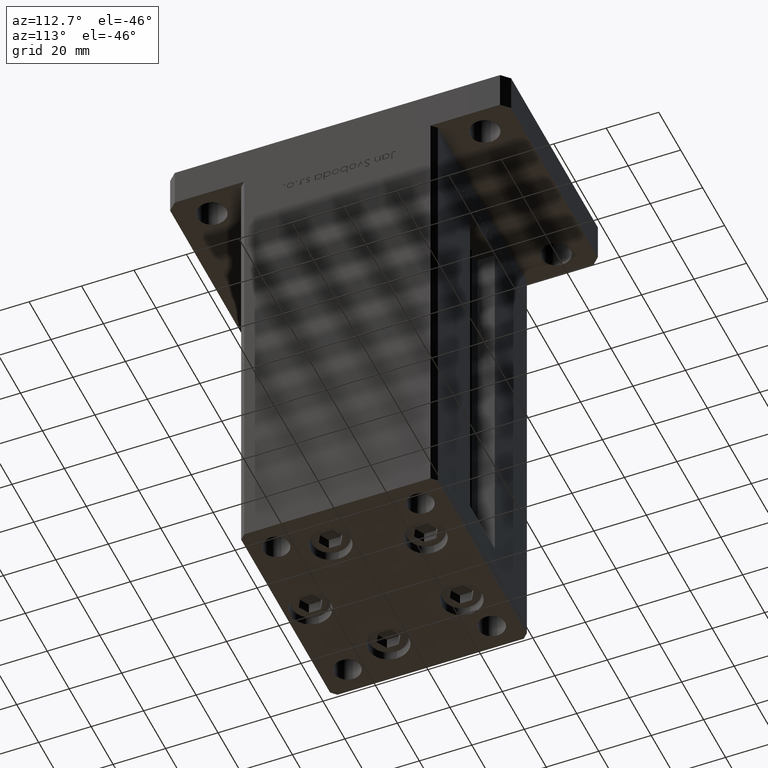
[diagram: clean part render]
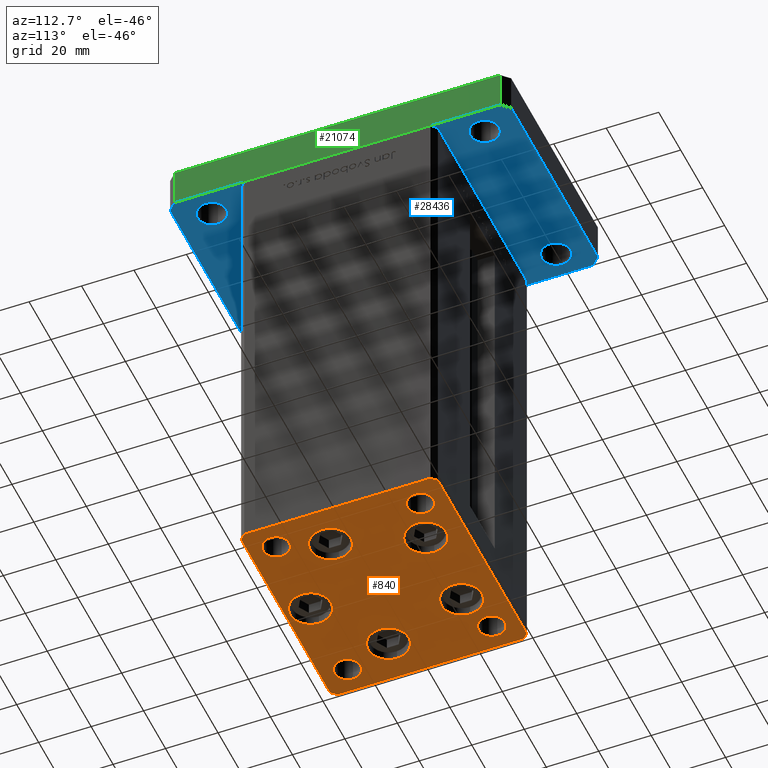
[diagram: same view with three faces highlighted in distinct colors, each labeled with its STEP entity id]
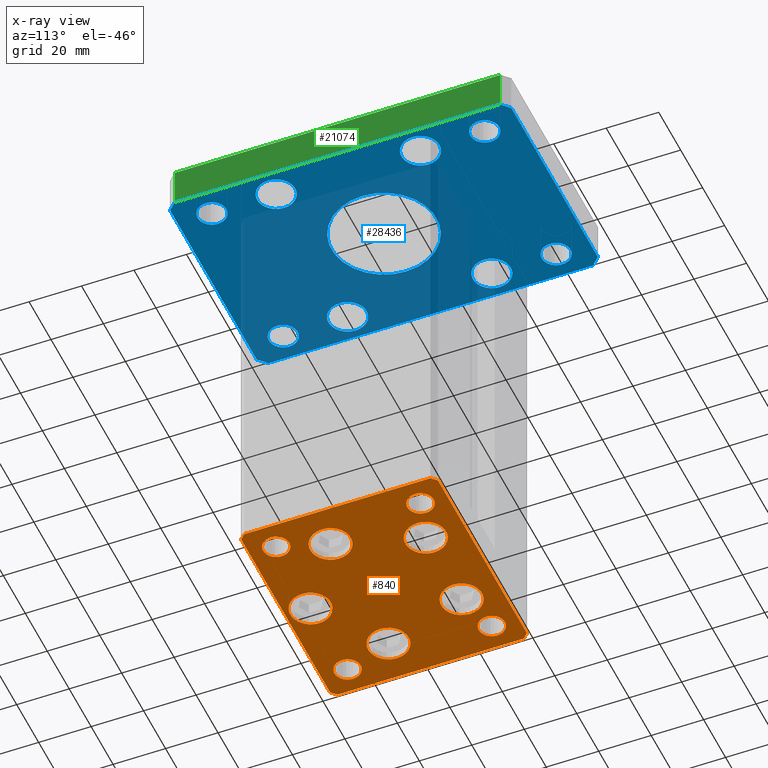
[diagram: x-ray of the same camera — body ghosted, the three highlighted faces saturated]
A machine part, auxiliary view with three faces highlighted in distinct colors.
The next image is the same camera in x-ray (body ghosted, the three faces saturated) — at least one of them is partly hidden behind the body in this view.
Their STEP definitions:

[orange] entity #840 — the highlighted planar face has unit normal (0, 0, -1).
#47 = EDGE_CURVE ( 'NONE', #5309, #43931, #10502, .T. ) ;
#50 = DIRECTION ( 'NONE',  ( 0.000000000000000000, -0.000000000000000000, -1.000000000000000000 ) ) ;
#138 = ORIENTED_EDGE ( 'NONE', *, *, #41197, .T. ) ;
#218 = EDGE_CURVE ( 'NONE', #30750, #37658, #41657, .T. ) ;
#732 = ORIENTED_EDGE ( 'NONE', *, *, #39212, .T. ) ;
#840 = ADVANCED_FACE ( 'NONE', ( #23060, #35537, #50135, #49337, #45540, #28991, #41745, #24394, #3538, #4334 ), #8409, .T. ) ;
#1034 = LINE ( 'NONE', #4027, #26340 ) ;
#1623 = DIRECTION ( 'NONE',  ( 0.000000000000000000, -0.000000000000000000, -1.000000000000000000 ) ) ;
#2177 = CARTESIAN_POINT ( 'NONE',  ( -34.14865316429776954, -9.333333333333337478, 0.000000000000000000 ) ) ;
#2233 = DIRECTION ( 'NONE',  ( -0.7071067811865463515, -0.7071067811865487940, 0.000000000000000000 ) ) ;
#2265 = ORIENTED_EDGE ( 'NONE', *, *, #39911, .T. ) ;
#2765 = VECTOR ( 'NONE', #36749, 1000.000000000000000 ) ;
#2802 = ORIENTED_EDGE ( 'NONE', *, *, #2935, .T. ) ;
#2814 = ORIENTED_EDGE ( 'NONE', *, *, #6255, .T. ) ;
#2935 = EDGE_CURVE ( 'NONE', #43137, #47054, #35698, .T. ) ;
#3074 = EDGE_CURVE ( 'NONE', #26140, #9778, #19243, .T. ) ;
#3148 = DIRECTION ( 'NONE',  ( -0.000000000000000000, 0.000000000000000000, 1.000000000000000000 ) ) ;
#3444 = EDGE_CURVE ( 'NONE', #14426, #27191, #6249, .T. ) ;
#3485 = EDGE_CURVE ( 'NONE', #21189, #26072, #13161, .T. ) ;
#3538 = FACE_OUTER_BOUND ( 'NONE', #14034, .T. ) ;
#3656 = AXIS2_PLACEMENT_3D ( 'NONE', #21634, #46039, #38169 ) ;
#3878 = DIRECTION ( 'NONE',  ( 0.000000000000000000, -0.000000000000000000, -1.000000000000000000 ) ) ;
#4023 = AXIS2_PLACEMENT_3D ( 'NONE', #20931, #3878, #8483 ) ;
#4027 = CARTESIAN_POINT ( 'NONE',  ( -40.49999999999999289, -37.50000000000002132, 0.000000000000000000 ) ) ;
#4334 = FACE_BOUND ( 'NONE', #7722, .T. ) ;
#4537 = DIRECTION ( 'NONE',  ( 1.000000000000000000, 0.000000000000000000, 0.000000000000000000 ) ) ;
#4918 = CARTESIAN_POINT ( 'NONE',  ( -37.50000000000000711, -27.49999999999999645, 0.000000000000000000 ) ) ;
#5309 = VERTEX_POINT ( 'NONE', #50039 ) ;
#5395 = EDGE_CURVE ( 'NONE', #13541, #24502, #13974, .T. ) ;
#5530 = EDGE_LOOP ( 'NONE', ( #2802, #9912 ) ) ;
#6033 = CARTESIAN_POINT ( 'NONE',  ( -42.50000000000000711, 35.49999999999997158, 0.000000000000000000 ) ) ;
#6249 = CIRCLE ( 'NONE', #3656, 5.000000000000000888 ) ;
#6255 = EDGE_CURVE ( 'NONE', #43931, #5309, #46015, .T. ) ;
#6308 = DIRECTION ( 'NONE',  ( 1.000000000000000000, 0.000000000000000000, 0.000000000000000000 ) ) ;
#6506 = LINE ( 'NONE', #15701, #11079 ) ;
#6619 = EDGE_CURVE ( 'NONE', #27191, #14426, #26120, .T. ) ;
#6905 = DIRECTION ( 'NONE',  ( -1.000000000000000000, -3.426614273534436165E-16, 0.000000000000000000 ) ) ;
#7217 = AXIS2_PLACEMENT_3D ( 'NONE', #35352, #48082, #26402 ) ;
#7321 = DIRECTION ( 'NONE',  ( -1.172770800660376741E-15, 1.000000000000000000, 0.000000000000000000 ) ) ;
#7591 = EDGE_CURVE ( 'NONE', #20173, #41198, #49473, .T. ) ;
#7722 = EDGE_LOOP ( 'NONE', ( #30973, #23786 ) ) ;
#7795 = DIRECTION ( 'NONE',  ( 1.000000000000000000, 0.000000000000000000, 0.000000000000000000 ) ) ;
#7968 = DIRECTION ( 'NONE',  ( 0.000000000000000000, -0.000000000000000000, -1.000000000000000000 ) ) ;
#7994 = CARTESIAN_POINT ( 'NONE',  ( 8.572913342905422951, 22.75000000000000000, 0.000000000000000000 ) ) ;
#8019 = EDGE_CURVE ( 'NONE', #42015, #36203, #38322, .T. ) ;
#8336 = CARTESIAN_POINT ( 'NONE',  ( -18.64865316429776954, -9.333333333333335702, 0.000000000000000000 ) ) ;
#8409 = PLANE ( 'NONE',  #26083 ) ;
#8483 = DIRECTION ( 'NONE',  ( 1.000000000000000000, 0.000000000000000000, 0.000000000000000000 ) ) ;
#9227 = DIRECTION ( 'NONE',  ( 1.000000000000000000, 0.000000000000000000, 0.000000000000000000 ) ) ;
#9694 = CARTESIAN_POINT ( 'NONE',  ( 27.50000000000000355, -27.49999999999999645, 0.000000000000000000 ) ) ;
#9778 = VERTEX_POINT ( 'NONE', #8336 ) ;
#9897 = CARTESIAN_POINT ( 'NONE',  ( 42.49999999999992895, 35.50000000000000000, 0.000000000000000000 ) ) ;
#9912 = ORIENTED_EDGE ( 'NONE', *, *, #30635, .T. ) ;
#9947 = DIRECTION ( 'NONE',  ( 0.000000000000000000, -0.000000000000000000, -1.000000000000000000 ) ) ;
#10188 = ORIENTED_EDGE ( 'NONE', *, *, #52794, .T. ) ;
#10290 = CARTESIAN_POINT ( 'NONE',  ( 32.50000000000000000, 27.49999999999999645, 0.000000000000000000 ) ) ;
#10502 = CIRCLE ( 'NONE', #39065, 7.750000000000000000 ) ;
#10798 = VERTEX_POINT ( 'NONE', #12138 ) ;
#10851 = ORIENTED_EDGE ( 'NONE', *, *, #6619, .F. ) ;
#10870 = CARTESIAN_POINT ( 'NONE',  ( -27.50000000000000000, -27.49999999999999645, 0.000000000000000000 ) ) ;
#11079 = VECTOR ( 'NONE', #7321, 1000.000000000000000 ) ;
#12138 = CARTESIAN_POINT ( 'NONE',  ( -40.50000000000000711, 37.49999999999997868, 0.000000000000000000 ) ) ;
#12197 = CARTESIAN_POINT ( 'NONE',  ( 0.000000000000000000, 0.000000000000000000, 0.000000000000000000 ) ) ;
#12249 = DIRECTION ( 'NONE',  ( 1.000000000000000000, 0.000000000000000000, 0.000000000000000000 ) ) ;
#12503 = CARTESIAN_POINT ( 'NONE',  ( 32.50000000000000000, -27.49999999999999645, 0.000000000000000000 ) ) ;
#13093 = CARTESIAN_POINT ( 'NONE',  ( 32.50000000000000000, -27.49999999999999645, 0.000000000000000000 ) ) ;
#13161 = CIRCLE ( 'NONE', #43472, 5.000000000000000888 ) ;
#13192 = AXIS2_PLACEMENT_3D ( 'NONE', #21876, #9947, #18598 ) ;
#13541 = VERTEX_POINT ( 'NONE', #24098 ) ;
#13553 = CARTESIAN_POINT ( 'NONE',  ( -26.39865316429776954, -9.333333333333337478, 0.000000000000000000 ) ) ;
#13632 = EDGE_CURVE ( 'NONE', #41198, #30080, #1034, .T. ) ;
#13942 = CARTESIAN_POINT ( 'NONE',  ( 18.64865316429776954, -9.333333333333330373, 0.000000000000000000 ) ) ;
#13974 = CIRCLE ( 'NONE', #49458, 4.999999999999997335 ) ;
#14034 = EDGE_LOOP ( 'NONE', ( #29025, #21039, #138, #38753, #24795, #732, #27035, #47514 ) ) ;
#14045 = EDGE_CURVE ( 'NONE', #24502, #13541, #34136, .T. ) ;
#14116 = EDGE_CURVE ( 'NONE', #22898, #20173, #51289, .T. ) ;
#14157 = DIRECTION ( 'NONE',  ( 9.773090005503140331E-17, -1.000000000000000000, 0.000000000000000000 ) ) ;
#14426 = VERTEX_POINT ( 'NONE', #18964 ) ;
#14948 = CARTESIAN_POINT ( 'NONE',  ( -42.50000000000000000, -35.50000000000000711, 0.000000000000000000 ) ) ;
#15280 = CARTESIAN_POINT ( 'NONE',  ( 24.07291334290542650, 22.75000000000000000, 0.000000000000000000 ) ) ;
#15701 = CARTESIAN_POINT ( 'NONE',  ( 42.50000000000000711, -35.50000000000000000, 0.000000000000000000 ) ) ;
#16723 = DIRECTION ( 'NONE',  ( 0.000000000000000000, -0.000000000000000000, -1.000000000000000000 ) ) ;
#16982 = DIRECTION ( 'NONE',  ( 1.000000000000000000, 0.000000000000000000, 0.000000000000000000 ) ) ;
#17338 = EDGE_LOOP ( 'NONE', ( #44650, #37374 ) ) ;
#17771 = ORIENTED_EDGE ( 'NONE', *, *, #31943, .T. ) ;
#17949 = DIRECTION ( 'NONE',  ( 0.000000000000000000, -0.000000000000000000, -1.000000000000000000 ) ) ;
#18114 = CIRCLE ( 'NONE', #18977, 7.750000000000000000 ) ;
#18400 = DIRECTION ( 'NONE',  ( 1.000000000000000000, 0.000000000000000000, 0.000000000000000000 ) ) ;
#18598 = DIRECTION ( 'NONE',  ( 1.000000000000000000, 0.000000000000000000, 0.000000000000000000 ) ) ;
#18964 = CARTESIAN_POINT ( 'NONE',  ( -27.50000000000000000, 27.50000000000000355, 0.000000000000000000 ) ) ;
#18977 = AXIS2_PLACEMENT_3D ( 'NONE', #33259, #29188, #16982 ) ;
#19243 = CIRCLE ( 'NONE', #46936, 7.750000000000000000 ) ;
#19441 = AXIS2_PLACEMENT_3D ( 'NONE', #13093, #49968, #41839 ) ;
#19572 = VERTEX_POINT ( 'NONE', #30318 ) ;
#19909 = EDGE_CURVE ( 'NONE', #26072, #21189, #22202, .T. ) ;
#19944 = EDGE_CURVE ( 'NONE', #45033, #19572, #28801, .T. ) ;
#20173 = VERTEX_POINT ( 'NONE', #14948 ) ;
#20333 = CARTESIAN_POINT ( 'NONE',  ( 40.50000000000000000, -37.50000000000000711, 0.000000000000000000 ) ) ;
#20512 = EDGE_CURVE ( 'NONE', #37658, #30750, #45511, .T. ) ;
#20516 = CARTESIAN_POINT ( 'NONE',  ( -32.50000000000000000, 27.50000000000000355, 0.000000000000000000 ) ) ;
#20931 = CARTESIAN_POINT ( 'NONE',  ( -32.50000000000000000, -27.49999999999999645, 0.000000000000000000 ) ) ;
#21039 = ORIENTED_EDGE ( 'NONE', *, *, #13632, .T. ) ;
#21189 = VERTEX_POINT ( 'NONE', #10870 ) ;
#21346 = CARTESIAN_POINT ( 'NONE',  ( 7.750000000000003553, -28.00000000000000000, 0.000000000000000000 ) ) ;
#21376 = CARTESIAN_POINT ( 'NONE',  ( 42.50000000000000711, -35.50000000000000000, 0.000000000000000000 ) ) ;
#21403 = ORIENTED_EDGE ( 'NONE', *, *, #3444, .F. ) ;
#21634 = CARTESIAN_POINT ( 'NONE',  ( -32.50000000000000000, 27.50000000000000355, 0.000000000000000000 ) ) ;
#21672 = ORIENTED_EDGE ( 'NONE', *, *, #5395, .T. ) ;
#21876 = CARTESIAN_POINT ( 'NONE',  ( 16.32291334290542295, 22.75000000000000000, 0.000000000000000000 ) ) ;
#22202 = CIRCLE ( 'NONE', #4023, 5.000000000000000888 ) ;
#22325 = DIRECTION ( 'NONE',  ( 0.7071067811865474617, 0.7071067811865474617, 0.000000000000000000 ) ) ;
#22556 = EDGE_LOOP ( 'NONE', ( #17771, #38664 ) ) ;
#22818 = LINE ( 'NONE', #39386, #34084 ) ;
#22851 = CARTESIAN_POINT ( 'NONE',  ( 40.50000000000000000, -37.50000000000000711, 0.000000000000000000 ) ) ;
#22898 = VERTEX_POINT ( 'NONE', #34244 ) ;
#23060 = FACE_BOUND ( 'NONE', #30880, .T. ) ;
#23223 = CARTESIAN_POINT ( 'NONE',  ( -37.50000000000000711, 27.50000000000000355, 0.000000000000000000 ) ) ;
#23482 = VERTEX_POINT ( 'NONE', #21376 ) ;
#23786 = ORIENTED_EDGE ( 'NONE', *, *, #19909, .T. ) ;
#23945 = CIRCLE ( 'NONE', #29963, 7.750000000000000000 ) ;
#24098 = CARTESIAN_POINT ( 'NONE',  ( 37.50000000000000000, -27.49999999999999645, 0.000000000000000000 ) ) ;
#24394 = FACE_BOUND ( 'NONE', #38972, .T. ) ;
#24502 = VERTEX_POINT ( 'NONE', #9694 ) ;
#24795 = ORIENTED_EDGE ( 'NONE', *, *, #19944, .T. ) ;
#24798 = VECTOR ( 'NONE', #45092, 1000.000000000000114 ) ;
#24829 = VECTOR ( 'NONE', #22325, 1000.000000000000114 ) ;
#26072 = VERTEX_POINT ( 'NONE', #4918 ) ;
#26083 = AXIS2_PLACEMENT_3D ( 'NONE', #12197, #45015, #45808 ) ;
#26120 = CIRCLE ( 'NONE', #47793, 5.000000000000000888 ) ;
#26140 = VERTEX_POINT ( 'NONE', #2177 ) ;
#26340 = VECTOR ( 'NONE', #46300, 1000.000000000000000 ) ;
#26402 = DIRECTION ( 'NONE',  ( 1.000000000000000000, 0.000000000000000000, 0.000000000000000000 ) ) ;
#26717 = CARTESIAN_POINT ( 'NONE',  ( 3.429011037612589276E-15, -28.00000000000000000, 0.000000000000000000 ) ) ;
#26791 = CARTESIAN_POINT ( 'NONE',  ( 37.50000000000000000, 27.49999999999999645, 0.000000000000000000 ) ) ;
#26984 = ORIENTED_EDGE ( 'NONE', *, *, #30274, .T. ) ;
#27035 = ORIENTED_EDGE ( 'NONE', *, *, #31994, .T. ) ;
#27191 = VERTEX_POINT ( 'NONE', #23223 ) ;
#27431 = DIRECTION ( 'NONE',  ( 1.000000000000000000, 0.000000000000000000, 0.000000000000000000 ) ) ;
#27983 = CARTESIAN_POINT ( 'NONE',  ( 3.429011037612589276E-15, -28.00000000000000000, 0.000000000000000000 ) ) ;
#28062 = CARTESIAN_POINT ( 'NONE',  ( 32.50000000000000000, 27.49999999999999645, 0.000000000000000000 ) ) ;
#28801 = LINE ( 'NONE', #45618, #24798 ) ;
#28991 = FACE_BOUND ( 'NONE', #17338, .T. ) ;
#29025 = ORIENTED_EDGE ( 'NONE', *, *, #7591, .T. ) ;
#29188 = DIRECTION ( 'NONE',  ( 0.000000000000000000, -0.000000000000000000, -1.000000000000000000 ) ) ;
#29350 = CARTESIAN_POINT ( 'NONE',  ( -26.39865316429776954, -9.333333333333337478, 0.000000000000000000 ) ) ;
#29441 = DIRECTION ( 'NONE',  ( -0.000000000000000000, 0.000000000000000000, 1.000000000000000000 ) ) ;
#29487 = DIRECTION ( 'NONE',  ( 0.000000000000000000, -0.000000000000000000, -1.000000000000000000 ) ) ;
#29834 = DIRECTION ( 'NONE',  ( 1.000000000000000000, 0.000000000000000000, 0.000000000000000000 ) ) ;
#29963 = AXIS2_PLACEMENT_3D ( 'NONE', #13553, #1623, #9227 ) ;
#30080 = VERTEX_POINT ( 'NONE', #20333 ) ;
#30274 = EDGE_CURVE ( 'NONE', #41400, #31845, #48758, .T. ) ;
#30318 = CARTESIAN_POINT ( 'NONE',  ( 40.49999999999991473, 37.50000000000000711, 0.000000000000000000 ) ) ;
#30635 = EDGE_CURVE ( 'NONE', #47054, #43137, #33148, .T. ) ;
#30750 = VERTEX_POINT ( 'NONE', #40763 ) ;
#30880 = EDGE_LOOP ( 'NONE', ( #10188, #26984 ) ) ;
#30973 = ORIENTED_EDGE ( 'NONE', *, *, #3485, .T. ) ;
#31845 = VERTEX_POINT ( 'NONE', #37132 ) ;
#31943 = EDGE_CURVE ( 'NONE', #36203, #42015, #44480, .T. ) ;
#31994 = EDGE_CURVE ( 'NONE', #10798, #22898, #22818, .T. ) ;
#33109 = EDGE_LOOP ( 'NONE', ( #35329, #2265 ) ) ;
#33134 = CARTESIAN_POINT ( 'NONE',  ( 34.14865316429776954, -9.333333333333328596, 0.000000000000000000 ) ) ;
#33148 = CIRCLE ( 'NONE', #7217, 7.750000000000000000 ) ;
#33202 = CARTESIAN_POINT ( 'NONE',  ( -42.50000000000000000, -35.50000000000000711, 0.000000000000000000 ) ) ;
#33259 = CARTESIAN_POINT ( 'NONE',  ( -16.32291334290543006, 22.74999999999999645, 0.000000000000000000 ) ) ;
#33479 = ORIENTED_EDGE ( 'NONE', *, *, #47, .T. ) ;
#34084 = VECTOR ( 'NONE', #2233, 1000.000000000000000 ) ;
#34106 = CARTESIAN_POINT ( 'NONE',  ( -32.50000000000000000, -27.49999999999999645, 0.000000000000000000 ) ) ;
#34136 = CIRCLE ( 'NONE', #19441, 4.999999999999997335 ) ;
#34244 = CARTESIAN_POINT ( 'NONE',  ( -42.50000000000000711, 35.49999999999997158, 0.000000000000000000 ) ) ;
#34786 = EDGE_LOOP ( 'NONE', ( #21672, #48109 ) ) ;
#35329 = ORIENTED_EDGE ( 'NONE', *, *, #3074, .T. ) ;
#35352 = CARTESIAN_POINT ( 'NONE',  ( 26.39865316429776954, -9.333333333333330373, 0.000000000000000000 ) ) ;
#35359 = LINE ( 'NONE', #51881, #41249 ) ;
#35537 = FACE_BOUND ( 'NONE', #22556, .T. ) ;
#35698 = CIRCLE ( 'NONE', #52133, 7.750000000000000000 ) ;
#36203 = VERTEX_POINT ( 'NONE', #7994 ) ;
#36749 = DIRECTION ( 'NONE',  ( 0.7071067811865463515, -0.7071067811865487940, 0.000000000000000000 ) ) ;
#36843 = DIRECTION ( 'NONE',  ( 0.000000000000000000, -0.000000000000000000, -1.000000000000000000 ) ) ;
#37132 = CARTESIAN_POINT ( 'NONE',  ( -24.07291334290543006, 22.74999999999999645, 0.000000000000000000 ) ) ;
#37374 = ORIENTED_EDGE ( 'NONE', *, *, #218, .F. ) ;
#37658 = VERTEX_POINT ( 'NONE', #26791 ) ;
#38169 = DIRECTION ( 'NONE',  ( 1.000000000000000000, 0.000000000000000000, 0.000000000000000000 ) ) ;
#38322 = CIRCLE ( 'NONE', #13192, 7.750000000000003553 ) ;
#38591 = AXIS2_PLACEMENT_3D ( 'NONE', #10290, #39027, #18400 ) ;
#38615 = CARTESIAN_POINT ( 'NONE',  ( -40.49999999999999289, -37.50000000000002132, 0.000000000000000000 ) ) ;
#38664 = ORIENTED_EDGE ( 'NONE', *, *, #8019, .T. ) ;
#38753 = ORIENTED_EDGE ( 'NONE', *, *, #44496, .T. ) ;
#38972 = EDGE_LOOP ( 'NONE', ( #21403, #10851 ) ) ;
#39027 = DIRECTION ( 'NONE',  ( -0.000000000000000000, 0.000000000000000000, 1.000000000000000000 ) ) ;
#39065 = AXIS2_PLACEMENT_3D ( 'NONE', #26717, #42999, #47324 ) ;
#39212 = EDGE_CURVE ( 'NONE', #19572, #10798, #35359, .T. ) ;
#39386 = CARTESIAN_POINT ( 'NONE',  ( -40.50000000000000711, 37.49999999999997868, 0.000000000000000000 ) ) ;
#39911 = EDGE_CURVE ( 'NONE', #9778, #26140, #23945, .T. ) ;
#39936 = AXIS2_PLACEMENT_3D ( 'NONE', #28062, #3148, #52475 ) ;
#40763 = CARTESIAN_POINT ( 'NONE',  ( 27.50000000000000355, 27.49999999999999645, 0.000000000000000000 ) ) ;
#40979 = AXIS2_PLACEMENT_3D ( 'NONE', #53596, #16723, #4537 ) ;
#41197 = EDGE_CURVE ( 'NONE', #30080, #23482, #46995, .T. ) ;
#41198 = VERTEX_POINT ( 'NONE', #38615 ) ;
#41249 = VECTOR ( 'NONE', #6905, 1000.000000000000000 ) ;
#41275 = CARTESIAN_POINT ( 'NONE',  ( -8.572913342905431833, 22.74999999999999645, 0.000000000000000000 ) ) ;
#41400 = VERTEX_POINT ( 'NONE', #41275 ) ;
#41657 = CIRCLE ( 'NONE', #39936, 4.999999999999997335 ) ;
#41745 = FACE_BOUND ( 'NONE', #34786, .T. ) ;
#41839 = DIRECTION ( 'NONE',  ( 1.000000000000000000, 0.000000000000000000, 0.000000000000000000 ) ) ;
#42015 = VERTEX_POINT ( 'NONE', #15280 ) ;
#42999 = DIRECTION ( 'NONE',  ( 0.000000000000000000, -0.000000000000000000, -1.000000000000000000 ) ) ;
#43137 = VERTEX_POINT ( 'NONE', #13942 ) ;
#43472 = AXIS2_PLACEMENT_3D ( 'NONE', #34106, #29487, #46305 ) ;
#43931 = VERTEX_POINT ( 'NONE', #21346 ) ;
#44480 = CIRCLE ( 'NONE', #46200, 7.750000000000003553 ) ;
#44496 = EDGE_CURVE ( 'NONE', #23482, #45033, #6506, .T. ) ;
#44650 = ORIENTED_EDGE ( 'NONE', *, *, #20512, .F. ) ;
#45015 = DIRECTION ( 'NONE',  ( -0.000000000000000000, 0.000000000000000000, 1.000000000000000000 ) ) ;
#45033 = VERTEX_POINT ( 'NONE', #9897 ) ;
#45092 = DIRECTION ( 'NONE',  ( -0.7071067811865474617, 0.7071067811865474617, 0.000000000000000000 ) ) ;
#45511 = CIRCLE ( 'NONE', #38591, 4.999999999999997335 ) ;
#45540 = FACE_BOUND ( 'NONE', #33109, .T. ) ;
#45618 = CARTESIAN_POINT ( 'NONE',  ( 42.49999999999992895, 35.50000000000000000, 0.000000000000000000 ) ) ;
#45632 = CARTESIAN_POINT ( 'NONE',  ( 26.39865316429776954, -9.333333333333330373, 0.000000000000000000 ) ) ;
#45808 = DIRECTION ( 'NONE',  ( 1.000000000000000000, 0.000000000000000000, 0.000000000000000000 ) ) ;
#45854 = DIRECTION ( 'NONE',  ( 0.000000000000000000, -0.000000000000000000, -1.000000000000000000 ) ) ;
#46015 = CIRCLE ( 'NONE', #50340, 7.750000000000000000 ) ;
#46039 = DIRECTION ( 'NONE',  ( -0.000000000000000000, 0.000000000000000000, 1.000000000000000000 ) ) ;
#46200 = AXIS2_PLACEMENT_3D ( 'NONE', #48782, #36843, #6308 ) ;
#46300 = DIRECTION ( 'NONE',  ( 1.000000000000000000, 1.713307136767217096E-16, 0.000000000000000000 ) ) ;
#46305 = DIRECTION ( 'NONE',  ( 1.000000000000000000, 0.000000000000000000, 0.000000000000000000 ) ) ;
#46936 = AXIS2_PLACEMENT_3D ( 'NONE', #29350, #17949, #27431 ) ;
#46993 = EDGE_LOOP ( 'NONE', ( #33479, #2814 ) ) ;
#46995 = LINE ( 'NONE', #22851, #24829 ) ;
#47054 = VERTEX_POINT ( 'NONE', #33134 ) ;
#47087 = VECTOR ( 'NONE', #14157, 1000.000000000000000 ) ;
#47324 = DIRECTION ( 'NONE',  ( 1.000000000000000000, 0.000000000000000000, 0.000000000000000000 ) ) ;
#47514 = ORIENTED_EDGE ( 'NONE', *, *, #14116, .T. ) ;
#47793 = AXIS2_PLACEMENT_3D ( 'NONE', #20516, #29441, #7795 ) ;
#48082 = DIRECTION ( 'NONE',  ( 0.000000000000000000, -0.000000000000000000, -1.000000000000000000 ) ) ;
#48109 = ORIENTED_EDGE ( 'NONE', *, *, #14045, .T. ) ;
#48758 = CIRCLE ( 'NONE', #40979, 7.750000000000000000 ) ;
#48782 = CARTESIAN_POINT ( 'NONE',  ( 16.32291334290542295, 22.75000000000000000, 0.000000000000000000 ) ) ;
#49170 = DIRECTION ( 'NONE',  ( 1.000000000000000000, 0.000000000000000000, 0.000000000000000000 ) ) ;
#49337 = FACE_BOUND ( 'NONE', #46993, .T. ) ;
#49458 = AXIS2_PLACEMENT_3D ( 'NONE', #12503, #45854, #29834 ) ;
#49473 = LINE ( 'NONE', #33202, #2765 ) ;
#49968 = DIRECTION ( 'NONE',  ( 0.000000000000000000, -0.000000000000000000, -1.000000000000000000 ) ) ;
#50039 = CARTESIAN_POINT ( 'NONE',  ( -7.749999999999996447, -28.00000000000000000, 0.000000000000000000 ) ) ;
#50135 = FACE_BOUND ( 'NONE', #5530, .T. ) ;
#50340 = AXIS2_PLACEMENT_3D ( 'NONE', #27983, #50, #12249 ) ;
#51289 = LINE ( 'NONE', #6033, #47087 ) ;
#51881 = CARTESIAN_POINT ( 'NONE',  ( 40.49999999999991473, 37.50000000000000711, 0.000000000000000000 ) ) ;
#52133 = AXIS2_PLACEMENT_3D ( 'NONE', #45632, #7968, #49170 ) ;
#52475 = DIRECTION ( 'NONE',  ( 1.000000000000000000, 0.000000000000000000, 0.000000000000000000 ) ) ;
#52794 = EDGE_CURVE ( 'NONE', #31845, #41400, #18114, .T. ) ;
#53596 = CARTESIAN_POINT ( 'NONE',  ( -16.32291334290543006, 22.74999999999999645, 0.000000000000000000 ) ) ;

[blue] entity #28436 — the highlighted planar face has unit normal (0, 0, 1).
#71 = EDGE_CURVE ( 'NONE', #35813, #35354, #22587, .T. ) ;
#129 = ORIENTED_EDGE ( 'NONE', *, *, #7662, .T. ) ;
#338 = CARTESIAN_POINT ( 'NONE',  ( -42.50000000000002132, 62.00000000000000711, 0.000000000000000000 ) ) ;
#1063 = CIRCLE ( 'NONE', #16639, 5.499999999999994671 ) ;
#1228 = CARTESIAN_POINT ( 'NONE',  ( 39.50000000000002842, 65.00000000000002842, 0.000000000000000000 ) ) ;
#1792 = ORIENTED_EDGE ( 'NONE', *, *, #2639, .T. ) ;
#1891 = ORIENTED_EDGE ( 'NONE', *, *, #50045, .T. ) ;
#2229 = DIRECTION ( 'NONE',  ( 0.000000000000000000, 0.000000000000000000, 1.000000000000000000 ) ) ;
#2279 = CARTESIAN_POINT ( 'NONE',  ( -32.50000000000000000, -27.50000000000000000, 0.000000000000000000 ) ) ;
#2509 = CIRCLE ( 'NONE', #13760, 7.249999999999999112 ) ;
#2631 = CARTESIAN_POINT ( 'NONE',  ( 32.50000000000000000, -27.50000000000000000, 0.000000000000000000 ) ) ;
#2639 = EDGE_CURVE ( 'NONE', #9589, #52268, #1063, .T. ) ;
#2667 = DIRECTION ( 'NONE',  ( 1.000000000000000000, 0.000000000000000000, 0.000000000000000000 ) ) ;
#2683 = DIRECTION ( 'NONE',  ( 1.000000000000000000, 0.000000000000000000, 0.000000000000000000 ) ) ;
#2856 = EDGE_LOOP ( 'NONE', ( #14182, #12857 ) ) ;
#3155 = LINE ( 'NONE', #35130, #10060 ) ;
#3361 = CIRCLE ( 'NONE', #18040, 5.499999999999998224 ) ;
#3566 = CARTESIAN_POINT ( 'NONE',  ( 32.50000000000000000, 27.50000000000000000, 0.000000000000000000 ) ) ;
#3603 = EDGE_CURVE ( 'NONE', #7195, #31715, #31259, .T. ) ;
#3897 = FACE_BOUND ( 'NONE', #19053, .T. ) ;
#4015 = DIRECTION ( 'NONE',  ( 0.000000000000000000, 0.000000000000000000, 1.000000000000000000 ) ) ;
#4280 = DIRECTION ( 'NONE',  ( 0.000000000000000000, 0.000000000000000000, 1.000000000000000000 ) ) ;
#4407 = DIRECTION ( 'NONE',  ( 2.238352872228137677E-16, -1.000000000000000000, 0.000000000000000000 ) ) ;
#4884 = VECTOR ( 'NONE', #36949, 1000.000000000000000 ) ;
#4919 = CARTESIAN_POINT ( 'NONE',  ( 27.00000000000001421, 51.99999999999999289, 0.000000000000000000 ) ) ;
#5081 = CARTESIAN_POINT ( 'NONE',  ( -32.50000000000000000, 52.00000000000000000, 0.000000000000000000 ) ) ;
#5174 = CARTESIAN_POINT ( 'NONE',  ( -25.25000000000000000, -27.50000000000000000, 0.000000000000000000 ) ) ;
#5353 = CARTESIAN_POINT ( 'NONE',  ( 32.50000000000000000, -27.50000000000000000, 0.000000000000000000 ) ) ;
#5555 = DIRECTION ( 'NONE',  ( 0.000000000000000000, 1.000000000000000000, 0.000000000000000000 ) ) ;
#5648 = VERTEX_POINT ( 'NONE', #46321 ) ;
#5848 = CARTESIAN_POINT ( 'NONE',  ( 42.50000000000000000, 62.00000000000000711, 0.000000000000000000 ) ) ;
#5875 = AXIS2_PLACEMENT_3D ( 'NONE', #8357, #4015, #37084 ) ;
#5881 = ORIENTED_EDGE ( 'NONE', *, *, #30670, .T. ) ;
#6632 = DIRECTION ( 'NONE',  ( 1.000000000000000000, 0.000000000000000000, 0.000000000000000000 ) ) ;
#7195 = VERTEX_POINT ( 'NONE', #5174 ) ;
#7242 = DIRECTION ( 'NONE',  ( -1.000000000000000000, 0.000000000000000000, 0.000000000000000000 ) ) ;
#7265 = LINE ( 'NONE', #10786, #42865 ) ;
#7454 = FACE_BOUND ( 'NONE', #2856, .T. ) ;
#7542 = CARTESIAN_POINT ( 'NONE',  ( 32.49999999999997868, -52.00000000000000711, 0.000000000000000000 ) ) ;
#7563 = VERTEX_POINT ( 'NONE', #12080 ) ;
#7662 = EDGE_CURVE ( 'NONE', #31715, #7195, #40008, .T. ) ;
#7732 = EDGE_CURVE ( 'NONE', #52670, #15400, #49409, .T. ) ;
#7973 = FACE_BOUND ( 'NONE', #9528, .T. ) ;
#8097 = DIRECTION ( 'NONE',  ( -1.000000000000000000, 0.000000000000000000, 0.000000000000000000 ) ) ;
#8124 = CARTESIAN_POINT ( 'NONE',  ( -42.49999999999999289, -62.00000000000001421, 0.000000000000000000 ) ) ;
#8357 = CARTESIAN_POINT ( 'NONE',  ( -32.50000000000000711, 27.50000000000000000, 0.000000000000000000 ) ) ;
#8376 = ORIENTED_EDGE ( 'NONE', *, *, #19781, .T. ) ;
#9108 = DIRECTION ( 'NONE',  ( 0.000000000000000000, 0.000000000000000000, 1.000000000000000000 ) ) ;
#9123 = VERTEX_POINT ( 'NONE', #17278 ) ;
#9401 = EDGE_CURVE ( 'NONE', #7563, #13826, #35766, .T. ) ;
#9444 = VERTEX_POINT ( 'NONE', #19574 ) ;
#9528 = EDGE_LOOP ( 'NONE', ( #15348, #27001 ) ) ;
#9589 = VERTEX_POINT ( 'NONE', #26030 ) ;
#10060 = VECTOR ( 'NONE', #51934, 1000.000000000000000 ) ;
#10389 = VERTEX_POINT ( 'NONE', #39691 ) ;
#10521 = CARTESIAN_POINT ( 'NONE',  ( 37.99999999999999289, 51.99999999999999289, 0.000000000000000000 ) ) ;
#10689 = CARTESIAN_POINT ( 'NONE',  ( 42.50000000000000000, -61.99999999999988631, 0.000000000000000000 ) ) ;
#10763 = CARTESIAN_POINT ( 'NONE',  ( 0.000000000000000000, 0.000000000000000000, 0.000000000000000000 ) ) ;
#10786 = CARTESIAN_POINT ( 'NONE',  ( 39.50000000000002842, 65.00000000000002842, 0.000000000000000000 ) ) ;
#11196 = ORIENTED_EDGE ( 'NONE', *, *, #7732, .F. ) ;
#11540 = AXIS2_PLACEMENT_3D ( 'NONE', #43762, #23144, #6632 ) ;
#11842 = AXIS2_PLACEMENT_3D ( 'NONE', #53616, #12955, #8097 ) ;
#12080 = CARTESIAN_POINT ( 'NONE',  ( 37.99999999999997868, -52.00000000000000711, 0.000000000000000000 ) ) ;
#12297 = DIRECTION ( 'NONE',  ( 1.000000000000000000, 0.000000000000000000, -0.000000000000000000 ) ) ;
#12306 = AXIS2_PLACEMENT_3D ( 'NONE', #36968, #24758, #12297 ) ;
#12409 = AXIS2_PLACEMENT_3D ( 'NONE', #5081, #47067, #21332 ) ;
#12660 = EDGE_CURVE ( 'NONE', #32426, #9123, #34939, .T. ) ;
#12684 = VECTOR ( 'NONE', #20612, 1000.000000000000000 ) ;
#12857 = ORIENTED_EDGE ( 'NONE', *, *, #43753, .T. ) ;
#12955 = DIRECTION ( 'NONE',  ( 0.000000000000000000, 0.000000000000000000, -1.000000000000000000 ) ) ;
#13122 = ORIENTED_EDGE ( 'NONE', *, *, #24091, .F. ) ;
#13166 = CARTESIAN_POINT ( 'NONE',  ( -32.49999999999997868, -52.00000000000000711, 0.000000000000000000 ) ) ;
#13384 = CARTESIAN_POINT ( 'NONE',  ( 39.75000000000000000, 27.50000000000000000, 0.000000000000000000 ) ) ;
#13748 = DIRECTION ( 'NONE',  ( 0.000000000000000000, 0.000000000000000000, 1.000000000000000000 ) ) ;
#13760 = AXIS2_PLACEMENT_3D ( 'NONE', #44080, #40015, #52467 ) ;
#13826 = VERTEX_POINT ( 'NONE', #35709 ) ;
#14182 = ORIENTED_EDGE ( 'NONE', *, *, #51732, .T. ) ;
#14253 = DIRECTION ( 'NONE',  ( 0.000000000000000000, 0.000000000000000000, 1.000000000000000000 ) ) ;
#14274 = DIRECTION ( 'NONE',  ( 1.000000000000000000, 0.000000000000000000, 0.000000000000000000 ) ) ;
#14317 = AXIS2_PLACEMENT_3D ( 'NONE', #2631, #44644, #35972 ) ;
#14920 = EDGE_CURVE ( 'NONE', #31370, #10389, #41108, .T. ) ;
#14965 = DIRECTION ( 'NONE',  ( 1.000000000000000000, 0.000000000000000000, 0.000000000000000000 ) ) ;
#15000 = EDGE_CURVE ( 'NONE', #22704, #21113, #39192, .T. ) ;
#15348 = ORIENTED_EDGE ( 'NONE', *, *, #22185, .T. ) ;
#15400 = VERTEX_POINT ( 'NONE', #8124 ) ;
#16070 = EDGE_CURVE ( 'NONE', #51958, #35923, #44603, .T. ) ;
#16159 = DIRECTION ( 'NONE',  ( 1.000000000000000000, 0.000000000000000000, 0.000000000000000000 ) ) ;
#16199 = CIRCLE ( 'NONE', #46508, 7.249999999999999112 ) ;
#16207 = DIRECTION ( 'NONE',  ( 0.000000000000000000, 0.000000000000000000, 1.000000000000000000 ) ) ;
#16221 = VERTEX_POINT ( 'NONE', #46010 ) ;
#16362 = FACE_OUTER_BOUND ( 'NONE', #37900, .T. ) ;
#16433 = DIRECTION ( 'NONE',  ( 1.000000000000000000, 0.000000000000000000, 0.000000000000000000 ) ) ;
#16639 = AXIS2_PLACEMENT_3D ( 'NONE', #21015, #36766, #16159 ) ;
#17221 = EDGE_LOOP ( 'NONE', ( #46626, #30034 ) ) ;
#17278 = CARTESIAN_POINT ( 'NONE',  ( -20.00000000000000000, 0.000000000000000000, 0.000000000000000000 ) ) ;
#17389 = EDGE_CURVE ( 'NONE', #9444, #41765, #28174, .T. ) ;
#17713 = VECTOR ( 'NONE', #35102, 1000.000000000000000 ) ;
#18040 = AXIS2_PLACEMENT_3D ( 'NONE', #7542, #22982, #2667 ) ;
#18144 = ORIENTED_EDGE ( 'NONE', *, *, #12660, .F. ) ;
#18309 = CARTESIAN_POINT ( 'NONE',  ( 32.50000000000000000, 51.99999999999999289, 0.000000000000000000 ) ) ;
#18502 = EDGE_CURVE ( 'NONE', #42540, #52670, #3155, .T. ) ;
#19053 = EDGE_LOOP ( 'NONE', ( #8376, #23590 ) ) ;
#19271 = AXIS2_PLACEMENT_3D ( 'NONE', #52103, #2229, #14965 ) ;
#19574 = CARTESIAN_POINT ( 'NONE',  ( 39.75000000000000000, -27.50000000000000000, 0.000000000000000000 ) ) ;
#19781 = EDGE_CURVE ( 'NONE', #35354, #35813, #35175, .T. ) ;
#19902 = FACE_BOUND ( 'NONE', #17221, .T. ) ;
#19936 = EDGE_CURVE ( 'NONE', #25855, #16221, #28277, .T. ) ;
#20252 = DIRECTION ( 'NONE',  ( 0.7071067811865459074, 0.7071067811865491270, 0.000000000000000000 ) ) ;
#20316 = EDGE_CURVE ( 'NONE', #15400, #25855, #49091, .T. ) ;
#20612 = DIRECTION ( 'NONE',  ( 0.7071067811865483499, -0.7071067811865466846, 0.000000000000000000 ) ) ;
#20671 = CARTESIAN_POINT ( 'NONE',  ( -39.50000000000000000, -65.00000000000000000, 0.000000000000000000 ) ) ;
#20793 = DIRECTION ( 'NONE',  ( 1.000000000000000000, 0.000000000000000000, 0.000000000000000000 ) ) ;
#21015 = CARTESIAN_POINT ( 'NONE',  ( -32.50000000000000000, 52.00000000000000000, 0.000000000000000000 ) ) ;
#21113 = VERTEX_POINT ( 'NONE', #1228 ) ;
#21191 = AXIS2_PLACEMENT_3D ( 'NONE', #48492, #16207, #2683 ) ;
#21332 = DIRECTION ( 'NONE',  ( 1.000000000000000000, 0.000000000000000000, 0.000000000000000000 ) ) ;
#22055 = AXIS2_PLACEMENT_3D ( 'NONE', #13166, #9108, #16433 ) ;
#22185 = EDGE_CURVE ( 'NONE', #35923, #51958, #24755, .T. ) ;
#22586 = AXIS2_PLACEMENT_3D ( 'NONE', #30545, #26494, #38714 ) ;
#22587 = CIRCLE ( 'NONE', #46835, 5.499999999999991118 ) ;
#22704 = VERTEX_POINT ( 'NONE', #36191 ) ;
#22960 = EDGE_LOOP ( 'NONE', ( #129, #26820 ) ) ;
#22982 = DIRECTION ( 'NONE',  ( 0.000000000000000000, 0.000000000000000000, 1.000000000000000000 ) ) ;
#23119 = VERTEX_POINT ( 'NONE', #32044 ) ;
#23144 = DIRECTION ( 'NONE',  ( 0.000000000000000000, 0.000000000000000000, 1.000000000000000000 ) ) ;
#23590 = ORIENTED_EDGE ( 'NONE', *, *, #71, .T. ) ;
#24091 = EDGE_CURVE ( 'NONE', #5648, #22704, #39434, .T. ) ;
#24151 = ORIENTED_EDGE ( 'NONE', *, *, #15000, .F. ) ;
#24755 = CIRCLE ( 'NONE', #52480, 7.249999999999999112 ) ;
#24758 = DIRECTION ( 'NONE',  ( 0.000000000000000000, 0.000000000000000000, 1.000000000000000000 ) ) ;
#25855 = VERTEX_POINT ( 'NONE', #53441 ) ;
#26030 = CARTESIAN_POINT ( 'NONE',  ( -38.00000000000000000, 52.00000000000000000, 0.000000000000000000 ) ) ;
#26494 = DIRECTION ( 'NONE',  ( 0.000000000000000000, 0.000000000000000000, 1.000000000000000000 ) ) ;
#26820 = ORIENTED_EDGE ( 'NONE', *, *, #3603, .T. ) ;
#27001 = ORIENTED_EDGE ( 'NONE', *, *, #16070, .T. ) ;
#27479 = DIRECTION ( 'NONE',  ( 0.000000000000000000, 0.000000000000000000, 1.000000000000000000 ) ) ;
#28174 = CIRCLE ( 'NONE', #14317, 7.249999999999999112 ) ;
#28277 = LINE ( 'NONE', #20671, #4884 ) ;
#28436 = ADVANCED_FACE ( 'NONE', ( #51895, #16362, #33161, #3897, #45115, #32367, #19902, #7973, #7454, #52971 ), #32896, .F. ) ;
#28477 = CARTESIAN_POINT ( 'NONE',  ( -42.49999999999999289, -62.00000000000001421, 0.000000000000000000 ) ) ;
#29438 = CARTESIAN_POINT ( 'NONE',  ( 25.25000000000000000, 27.50000000000000000, 0.000000000000000000 ) ) ;
#29974 = AXIS2_PLACEMENT_3D ( 'NONE', #42224, #4280, #20793 ) ;
#30034 = ORIENTED_EDGE ( 'NONE', *, *, #17389, .T. ) ;
#30102 = ORIENTED_EDGE ( 'NONE', *, *, #34997, .F. ) ;
#30333 = EDGE_CURVE ( 'NONE', #52268, #9589, #39249, .T. ) ;
#30545 = CARTESIAN_POINT ( 'NONE',  ( -32.50000000000000000, -27.50000000000000000, 0.000000000000000000 ) ) ;
#30670 = EDGE_CURVE ( 'NONE', #10389, #31370, #50486, .T. ) ;
#30772 = DIRECTION ( 'NONE',  ( 1.000000000000000000, 0.000000000000000000, 0.000000000000000000 ) ) ;
#30971 = CIRCLE ( 'NONE', #5875, 7.249999999999999112 ) ;
#30996 = DIRECTION ( 'NONE',  ( 1.000000000000000000, 0.000000000000000000, 0.000000000000000000 ) ) ;
#31259 = CIRCLE ( 'NONE', #22586, 7.249999999999999112 ) ;
#31370 = VERTEX_POINT ( 'NONE', #48698 ) ;
#31715 = VERTEX_POINT ( 'NONE', #33418 ) ;
#32044 = CARTESIAN_POINT ( 'NONE',  ( -39.75000000000000711, 27.50000000000000000, 0.000000000000000000 ) ) ;
#32367 = FACE_BOUND ( 'NONE', #22960, .T. ) ;
#32426 = VERTEX_POINT ( 'NONE', #43519 ) ;
#32721 = CARTESIAN_POINT ( 'NONE',  ( 39.50000000000001421, -64.99999999999988631, 0.000000000000000000 ) ) ;
#32896 = PLANE ( 'NONE',  #12306 ) ;
#32924 = ORIENTED_EDGE ( 'NONE', *, *, #40097, .F. ) ;
#33161 = FACE_BOUND ( 'NONE', #46243, .T. ) ;
#33198 = AXIS2_PLACEMENT_3D ( 'NONE', #10763, #44115, #7242 ) ;
#33418 = CARTESIAN_POINT ( 'NONE',  ( -39.75000000000000000, -27.50000000000000000, 0.000000000000000000 ) ) ;
#34939 = CIRCLE ( 'NONE', #33198, 20.00000000000000000 ) ;
#34997 = EDGE_CURVE ( 'NONE', #21113, #42540, #7265, .T. ) ;
#35102 = DIRECTION ( 'NONE',  ( -0.7071067811865417996, 0.7071067811865532349, 0.000000000000000000 ) ) ;
#35130 = CARTESIAN_POINT ( 'NONE',  ( -39.50000000000003553, 65.00000000000000000, 0.000000000000000000 ) ) ;
#35175 = CIRCLE ( 'NONE', #29974, 5.499999999999991118 ) ;
#35354 = VERTEX_POINT ( 'NONE', #4919 ) ;
#35709 = CARTESIAN_POINT ( 'NONE',  ( 26.99999999999998579, -52.00000000000000711, 0.000000000000000000 ) ) ;
#35766 = CIRCLE ( 'NONE', #19271, 5.499999999999998224 ) ;
#35813 = VERTEX_POINT ( 'NONE', #10521 ) ;
#35923 = VERTEX_POINT ( 'NONE', #29438 ) ;
#35972 = DIRECTION ( 'NONE',  ( 1.000000000000000000, 0.000000000000000000, 0.000000000000000000 ) ) ;
#36191 = CARTESIAN_POINT ( 'NONE',  ( 42.50000000000000000, 62.00000000000000711, 0.000000000000000000 ) ) ;
#36253 = CARTESIAN_POINT ( 'NONE',  ( -25.25000000000000711, 27.50000000000000000, 0.000000000000000000 ) ) ;
#36766 = DIRECTION ( 'NONE',  ( 0.000000000000000000, 0.000000000000000000, 1.000000000000000000 ) ) ;
#36785 = ORIENTED_EDGE ( 'NONE', *, *, #36845, .F. ) ;
#36845 = EDGE_CURVE ( 'NONE', #16221, #5648, #49793, .T. ) ;
#36949 = DIRECTION ( 'NONE',  ( 1.000000000000000000, 1.405345600791337191E-15, 0.000000000000000000 ) ) ;
#36968 = CARTESIAN_POINT ( 'NONE',  ( 0.000000000000000000, 0.000000000000000000, 0.000000000000000000 ) ) ;
#37084 = DIRECTION ( 'NONE',  ( 1.000000000000000000, 0.000000000000000000, 0.000000000000000000 ) ) ;
#37276 = EDGE_LOOP ( 'NONE', ( #1792, #51223 ) ) ;
#37900 = EDGE_LOOP ( 'NONE', ( #47989, #39421, #11196, #44861, #30102, #24151, #13122, #36785 ) ) ;
#38714 = DIRECTION ( 'NONE',  ( 1.000000000000000000, 0.000000000000000000, 0.000000000000000000 ) ) ;
#39192 = LINE ( 'NONE', #5848, #17713 ) ;
#39243 = EDGE_LOOP ( 'NONE', ( #1891, #49974 ) ) ;
#39249 = CIRCLE ( 'NONE', #12409, 5.499999999999994671 ) ;
#39421 = ORIENTED_EDGE ( 'NONE', *, *, #20316, .F. ) ;
#39434 = LINE ( 'NONE', #10689, #42954 ) ;
#39559 = CARTESIAN_POINT ( 'NONE',  ( 25.25000000000000000, -27.50000000000000000, 0.000000000000000000 ) ) ;
#39652 = DIRECTION ( 'NONE',  ( 0.000000000000000000, 0.000000000000000000, 1.000000000000000000 ) ) ;
#39691 = CARTESIAN_POINT ( 'NONE',  ( -37.99999999999997868, -52.00000000000000711, 0.000000000000000000 ) ) ;
#40008 = CIRCLE ( 'NONE', #46901, 7.249999999999999112 ) ;
#40015 = DIRECTION ( 'NONE',  ( 0.000000000000000000, 0.000000000000000000, 1.000000000000000000 ) ) ;
#40097 = EDGE_CURVE ( 'NONE', #9123, #32426, #46467, .T. ) ;
#41108 = CIRCLE ( 'NONE', #22055, 5.499999999999994671 ) ;
#41765 = VERTEX_POINT ( 'NONE', #39559 ) ;
#42224 = CARTESIAN_POINT ( 'NONE',  ( 32.50000000000000000, 51.99999999999999289, 0.000000000000000000 ) ) ;
#42540 = VERTEX_POINT ( 'NONE', #49348 ) ;
#42767 = EDGE_CURVE ( 'NONE', #41765, #9444, #16199, .T. ) ;
#42865 = VECTOR ( 'NONE', #47909, 1000.000000000000000 ) ;
#42954 = VECTOR ( 'NONE', #5555, 1000.000000000000000 ) ;
#43519 = CARTESIAN_POINT ( 'NONE',  ( 20.00000000000000000, 2.449293598294706513E-15, 0.000000000000000000 ) ) ;
#43753 = EDGE_CURVE ( 'NONE', #44930, #23119, #30971, .T. ) ;
#43762 = CARTESIAN_POINT ( 'NONE',  ( -32.49999999999997868, -52.00000000000000711, 0.000000000000000000 ) ) ;
#44080 = CARTESIAN_POINT ( 'NONE',  ( -32.50000000000000711, 27.50000000000000000, 0.000000000000000000 ) ) ;
#44115 = DIRECTION ( 'NONE',  ( 0.000000000000000000, 0.000000000000000000, -1.000000000000000000 ) ) ;
#44254 = DIRECTION ( 'NONE',  ( 1.000000000000000000, 0.000000000000000000, 0.000000000000000000 ) ) ;
#44603 = CIRCLE ( 'NONE', #21191, 7.249999999999999112 ) ;
#44644 = DIRECTION ( 'NONE',  ( 0.000000000000000000, 0.000000000000000000, 1.000000000000000000 ) ) ;
#44861 = ORIENTED_EDGE ( 'NONE', *, *, #18502, .F. ) ;
#44930 = VERTEX_POINT ( 'NONE', #36253 ) ;
#44946 = CARTESIAN_POINT ( 'NONE',  ( -42.50000000000002132, 62.00000000000000711, 0.000000000000000000 ) ) ;
#45115 = FACE_BOUND ( 'NONE', #37276, .T. ) ;
#46010 = CARTESIAN_POINT ( 'NONE',  ( 39.50000000000001421, -64.99999999999988631, 0.000000000000000000 ) ) ;
#46243 = EDGE_LOOP ( 'NONE', ( #5881, #47577 ) ) ;
#46321 = CARTESIAN_POINT ( 'NONE',  ( 42.50000000000000000, -61.99999999999988631, 0.000000000000000000 ) ) ;
#46467 = CIRCLE ( 'NONE', #11842, 20.00000000000000000 ) ;
#46508 = AXIS2_PLACEMENT_3D ( 'NONE', #5353, #13748, #14274 ) ;
#46626 = ORIENTED_EDGE ( 'NONE', *, *, #42767, .T. ) ;
#46835 = AXIS2_PLACEMENT_3D ( 'NONE', #18309, #14253, #30772 ) ;
#46901 = AXIS2_PLACEMENT_3D ( 'NONE', #2279, #27479, #30996 ) ;
#47067 = DIRECTION ( 'NONE',  ( 0.000000000000000000, 0.000000000000000000, 1.000000000000000000 ) ) ;
#47577 = ORIENTED_EDGE ( 'NONE', *, *, #14920, .T. ) ;
#47909 = DIRECTION ( 'NONE',  ( -1.000000000000000000, -3.513364001978340512E-16, 0.000000000000000000 ) ) ;
#47989 = ORIENTED_EDGE ( 'NONE', *, *, #19936, .F. ) ;
#48492 = CARTESIAN_POINT ( 'NONE',  ( 32.50000000000000000, 27.50000000000000000, 0.000000000000000000 ) ) ;
#48698 = CARTESIAN_POINT ( 'NONE',  ( -26.99999999999998579, -52.00000000000000711, 0.000000000000000000 ) ) ;
#49039 = EDGE_LOOP ( 'NONE', ( #32924, #18144 ) ) ;
#49091 = LINE ( 'NONE', #28477, #12684 ) ;
#49348 = CARTESIAN_POINT ( 'NONE',  ( -39.50000000000003553, 65.00000000000000000, 0.000000000000000000 ) ) ;
#49409 = LINE ( 'NONE', #338, #51227 ) ;
#49793 = LINE ( 'NONE', #32721, #53270 ) ;
#49974 = ORIENTED_EDGE ( 'NONE', *, *, #9401, .T. ) ;
#50045 = EDGE_CURVE ( 'NONE', #13826, #7563, #3361, .T. ) ;
#50486 = CIRCLE ( 'NONE', #11540, 5.499999999999994671 ) ;
#51223 = ORIENTED_EDGE ( 'NONE', *, *, #30333, .T. ) ;
#51227 = VECTOR ( 'NONE', #4407, 1000.000000000000000 ) ;
#51732 = EDGE_CURVE ( 'NONE', #23119, #44930, #2509, .T. ) ;
#51895 = FACE_BOUND ( 'NONE', #49039, .T. ) ;
#51934 = DIRECTION ( 'NONE',  ( -0.7071067811865466846, -0.7071067811865483499, 0.000000000000000000 ) ) ;
#51958 = VERTEX_POINT ( 'NONE', #13384 ) ;
#52054 = CARTESIAN_POINT ( 'NONE',  ( -27.00000000000000711, 52.00000000000000000, 0.000000000000000000 ) ) ;
#52103 = CARTESIAN_POINT ( 'NONE',  ( 32.49999999999997868, -52.00000000000000711, 0.000000000000000000 ) ) ;
#52268 = VERTEX_POINT ( 'NONE', #52054 ) ;
#52467 = DIRECTION ( 'NONE',  ( 1.000000000000000000, 0.000000000000000000, 0.000000000000000000 ) ) ;
#52480 = AXIS2_PLACEMENT_3D ( 'NONE', #3566, #39652, #44254 ) ;
#52670 = VERTEX_POINT ( 'NONE', #44946 ) ;
#52971 = FACE_BOUND ( 'NONE', #39243, .T. ) ;
#53270 = VECTOR ( 'NONE', #20252, 1000.000000000000114 ) ;
#53441 = CARTESIAN_POINT ( 'NONE',  ( -39.50000000000000000, -65.00000000000000000, 0.000000000000000000 ) ) ;
#53616 = CARTESIAN_POINT ( 'NONE',  ( 0.000000000000000000, 0.000000000000000000, 0.000000000000000000 ) ) ;

[green] entity #21074 — the highlighted planar face has unit normal (-1, 0, 0).
#4380 = ORIENTED_EDGE ( 'NONE', *, *, #40158, .F. ) ;
#5555 = DIRECTION ( 'NONE',  ( 0.000000000000000000, 1.000000000000000000, 0.000000000000000000 ) ) ;
#5648 = VERTEX_POINT ( 'NONE', #46321 ) ;
#8860 = EDGE_CURVE ( 'NONE', #38887, #31984, #18139, .T. ) ;
#9161 = LINE ( 'NONE', #26487, #23272 ) ;
#10689 = CARTESIAN_POINT ( 'NONE',  ( 42.50000000000000000, -61.99999999999988631, 0.000000000000000000 ) ) ;
#13821 = DIRECTION ( 'NONE',  ( 0.000000000000000000, 1.000000000000000000, 0.000000000000000000 ) ) ;
#14544 = CARTESIAN_POINT ( 'NONE',  ( 42.50000000000000000, -61.99999999999988631, 15.00000000000000000 ) ) ;
#17517 = VECTOR ( 'NONE', #13821, 1000.000000000000000 ) ;
#18037 = ORIENTED_EDGE ( 'NONE', *, *, #24091, .T. ) ;
#18139 = LINE ( 'NONE', #34686, #17517 ) ;
#21074 = ADVANCED_FACE ( 'NONE', ( #34821 ), #47289, .F. ) ;
#22704 = VERTEX_POINT ( 'NONE', #36191 ) ;
#23272 = VECTOR ( 'NONE', #37896, 1000.000000000000000 ) ;
#24091 = EDGE_CURVE ( 'NONE', #5648, #22704, #39434, .T. ) ;
#24883 = ORIENTED_EDGE ( 'NONE', *, *, #27936, .T. ) ;
#25690 = LINE ( 'NONE', #26216, #34351 ) ;
#26216 = CARTESIAN_POINT ( 'NONE',  ( 42.50000000000000000, 62.00000000000000711, 15.00000000000000000 ) ) ;
#26487 = CARTESIAN_POINT ( 'NONE',  ( 42.50000000000000000, -61.99999999999988631, 15.00000000000000000 ) ) ;
#26684 = CARTESIAN_POINT ( 'NONE',  ( 42.50000000000000000, -61.99999999999988631, 15.00000000000000000 ) ) ;
#27936 = EDGE_CURVE ( 'NONE', #38887, #5648, #9161, .T. ) ;
#31984 = VERTEX_POINT ( 'NONE', #44989 ) ;
#34351 = VECTOR ( 'NONE', #42506, 1000.000000000000000 ) ;
#34686 = CARTESIAN_POINT ( 'NONE',  ( 42.50000000000000000, -61.99999999999988631, 15.00000000000000000 ) ) ;
#34821 = FACE_OUTER_BOUND ( 'NONE', #35472, .T. ) ;
#35086 = DIRECTION ( 'NONE',  ( 0.000000000000000000, 0.000000000000000000, 1.000000000000000000 ) ) ;
#35472 = EDGE_LOOP ( 'NONE', ( #18037, #4380, #47726, #24883 ) ) ;
#36191 = CARTESIAN_POINT ( 'NONE',  ( 42.50000000000000000, 62.00000000000000711, 0.000000000000000000 ) ) ;
#37689 = AXIS2_PLACEMENT_3D ( 'NONE', #26684, #38908, #35086 ) ;
#37896 = DIRECTION ( 'NONE',  ( -0.000000000000000000, -0.000000000000000000, -1.000000000000000000 ) ) ;
#38887 = VERTEX_POINT ( 'NONE', #14544 ) ;
#38908 = DIRECTION ( 'NONE',  ( -1.000000000000000000, 0.000000000000000000, 0.000000000000000000 ) ) ;
#39434 = LINE ( 'NONE', #10689, #42954 ) ;
#40158 = EDGE_CURVE ( 'NONE', #31984, #22704, #25690, .T. ) ;
#42506 = DIRECTION ( 'NONE',  ( -0.000000000000000000, -0.000000000000000000, -1.000000000000000000 ) ) ;
#42954 = VECTOR ( 'NONE', #5555, 1000.000000000000000 ) ;
#44989 = CARTESIAN_POINT ( 'NONE',  ( 42.50000000000000000, 62.00000000000000711, 15.00000000000000000 ) ) ;
#46321 = CARTESIAN_POINT ( 'NONE',  ( 42.50000000000000000, -61.99999999999988631, 0.000000000000000000 ) ) ;
#47289 = PLANE ( 'NONE',  #37689 ) ;
#47726 = ORIENTED_EDGE ( 'NONE', *, *, #8860, .F. ) ;